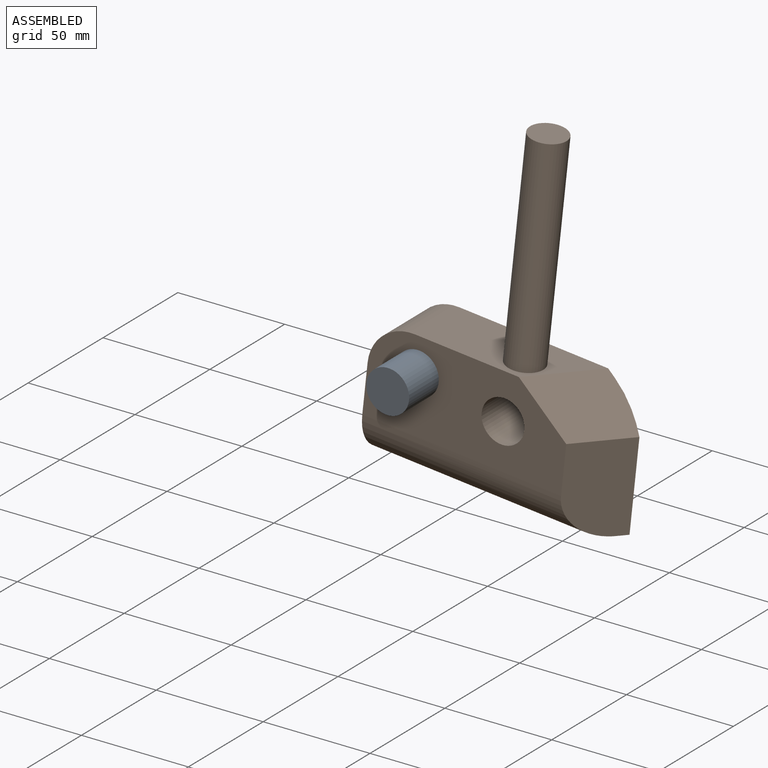
[diagram: assembled view]
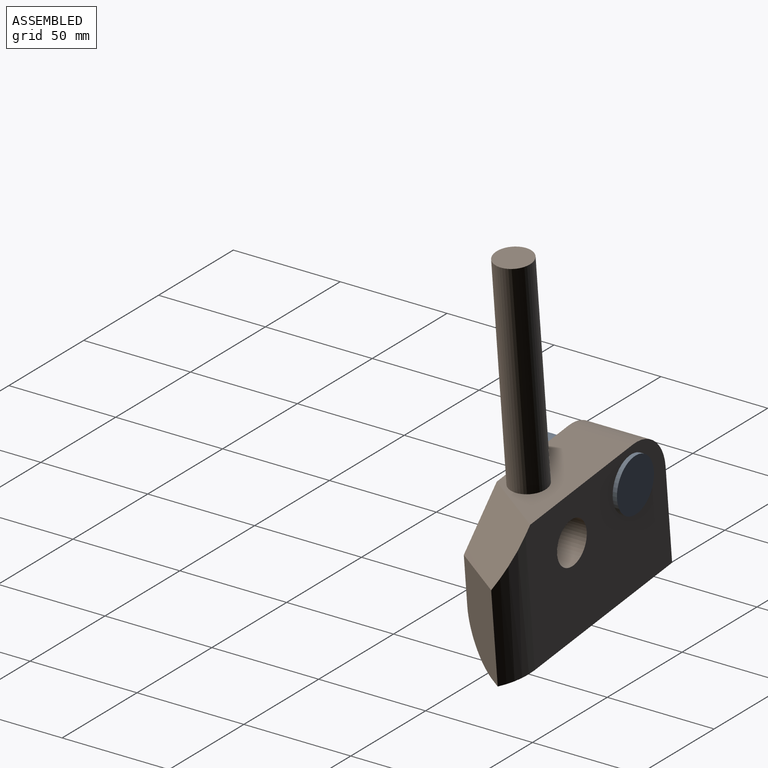
[diagram: assembled view, second angle]
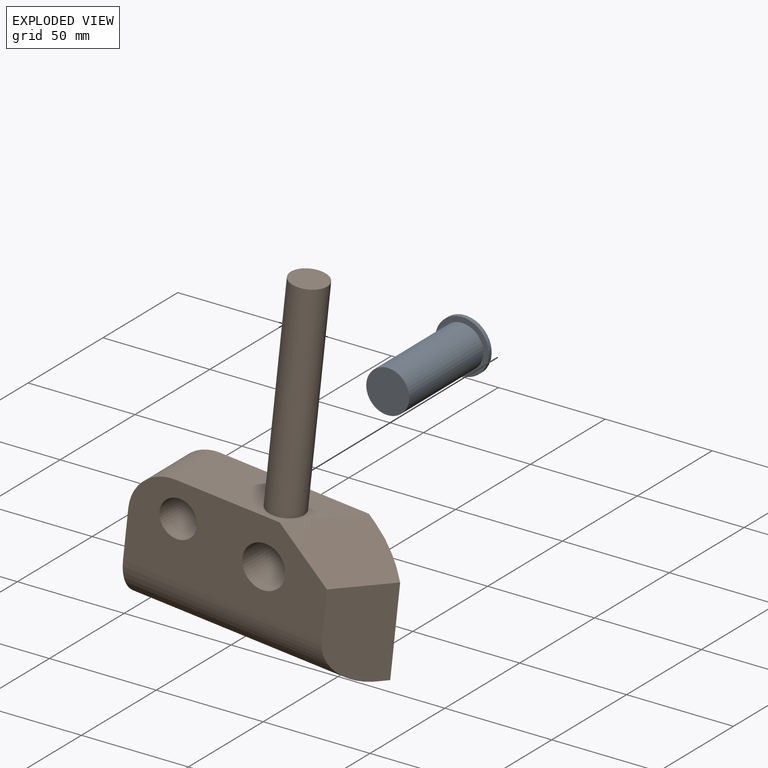
[diagram: exploded view]
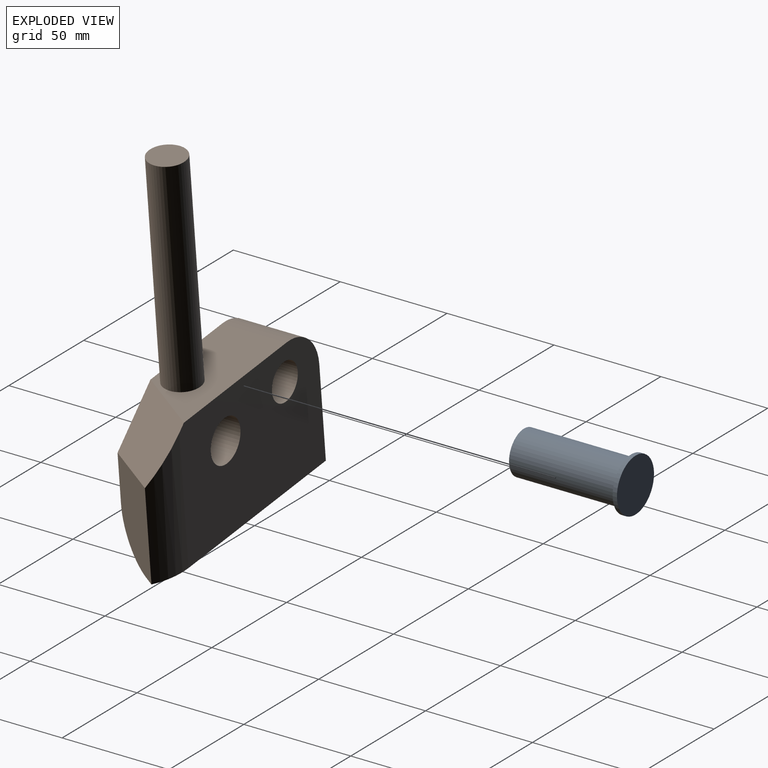
[diagram: exploded view, second angle]
ASSEMBLY  parts=2 mates=2
PART A: 5 faces, bbox 25x52x25 mm
  f0: cylinder r=10mm len=50mm, axis (0,1,0), area 3141.6mm2, adj f1,f4
  f1: plane 20x20mm, normal (0,-1,0), area 314.2mm2, adj f0
  f2: cylinder r=12.5mm len=25mm, axis (0,-1,0), area 157.1mm2, adj f3,f4
  f3: plane 25x25mm, normal (0,1,0), area 490.9mm2, adj f2
  f4: plane 25x25mm, normal (0,-1,0), area 176.7mm2, adj f0,f2
PART B: 14 faces, bbox 110.3x162.7x30 mm
  f0: plane 110.31x10mm, normal (0,1,0), area 1065.9mm2, adj f1,f3,f6,f7,f11
  f1: plane 42.73x30mm, normal (-1,0,0), area 1196mm2, adj f0,f3,f4,f10,f11
  f2: plane 69.69x30mm, normal (0,-1,0), area 1546.2mm2, adj f3,f4,f8,f10,f12
  f3: plane 93.1x62.73mm, normal (0,0,1), area 5197.1mm2, adj f0,f1,f2,f5,f6,f10,f12,f13
  f4: plane 93.1x42.73mm, normal (0,0,-1), area 3095.7mm2, adj f1,f2,f5,f7,f10,f11,f12,f13
  f5: cylinder r=8.71mm len=30mm, axis (0,0,-1), area 1641.1mm2, adj f3,f4
  f6: cylinder r=30mm len=59.93mm, axis (0,1,0), area 945.8mm2, adj f0,f3,f7,f12
  f7: plane 42.73x24.57mm, normal (0.82,0,-0.57), area 1177mm2, adj f0,f4,f6,f11,f12
  f8: cylinder r=8.55mm len=100mm, axis (0,1,0), area 5369.2mm2, adj f2,f9
  f9: plane 17.09x17.09mm, normal (0,-1,0), area 229.4mm2, adj f8
  f10: cylinder r=20mm len=30mm, axis (0,0,-1), area 942.5mm2, adj f1,f2,f3,f4
  f11: cylinder r=20mm len=107.1mm, axis (-1,0,0), area 3084.7mm2, adj f0,f1,f4,f7
  f12: plane 41.62x30mm, normal (0.58,-0.71,-0.41), area 979mm2, adj f2,f3,f4,f6,f7
  f13: cylinder r=10mm len=30mm, axis (0,0,-1), area 1885mm2, adj f3,f4
PLACE A rot(axis=(0,-1,0),173.9deg) t=(-123.11,168.92,102.01)mm
PLACE B rot(axis=(-1,0.05,0.06),90.3deg) t=(-87.01,139.06,66.53)mm fixed
MATE planar A.f0 <-> B.f3  axis (0.01,-1,0) through (-110.33,168.96,86.25)mm
MATE cylindrical A.f0 <-> B.f5  axis (-0.01,1,0) through (-110.18,143.96,86.31)mm
